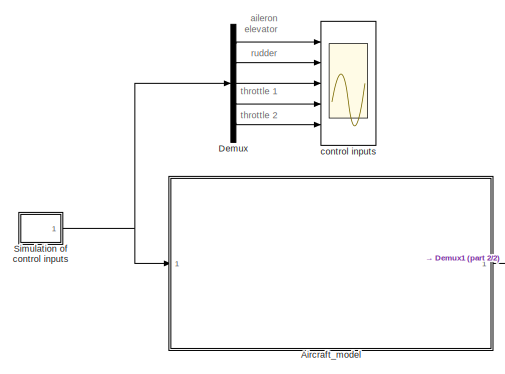
[diagram: root canvas - part 1/2, top left region]
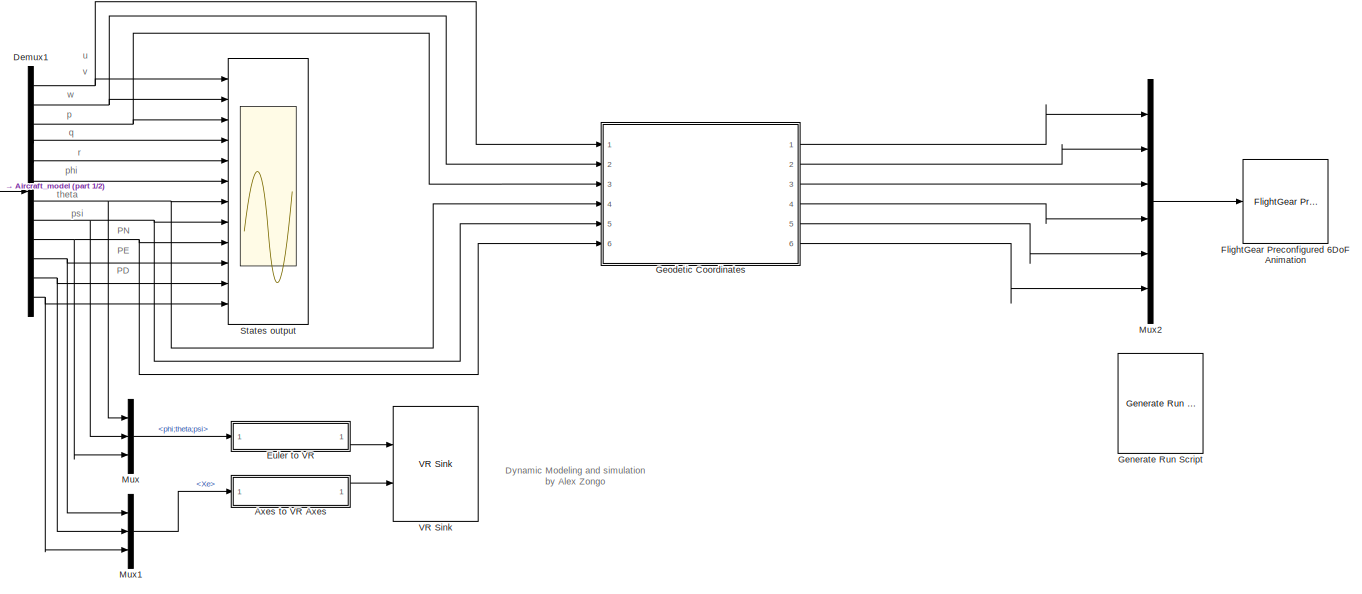
[diagram: root canvas - part 2/2, center side, full height]
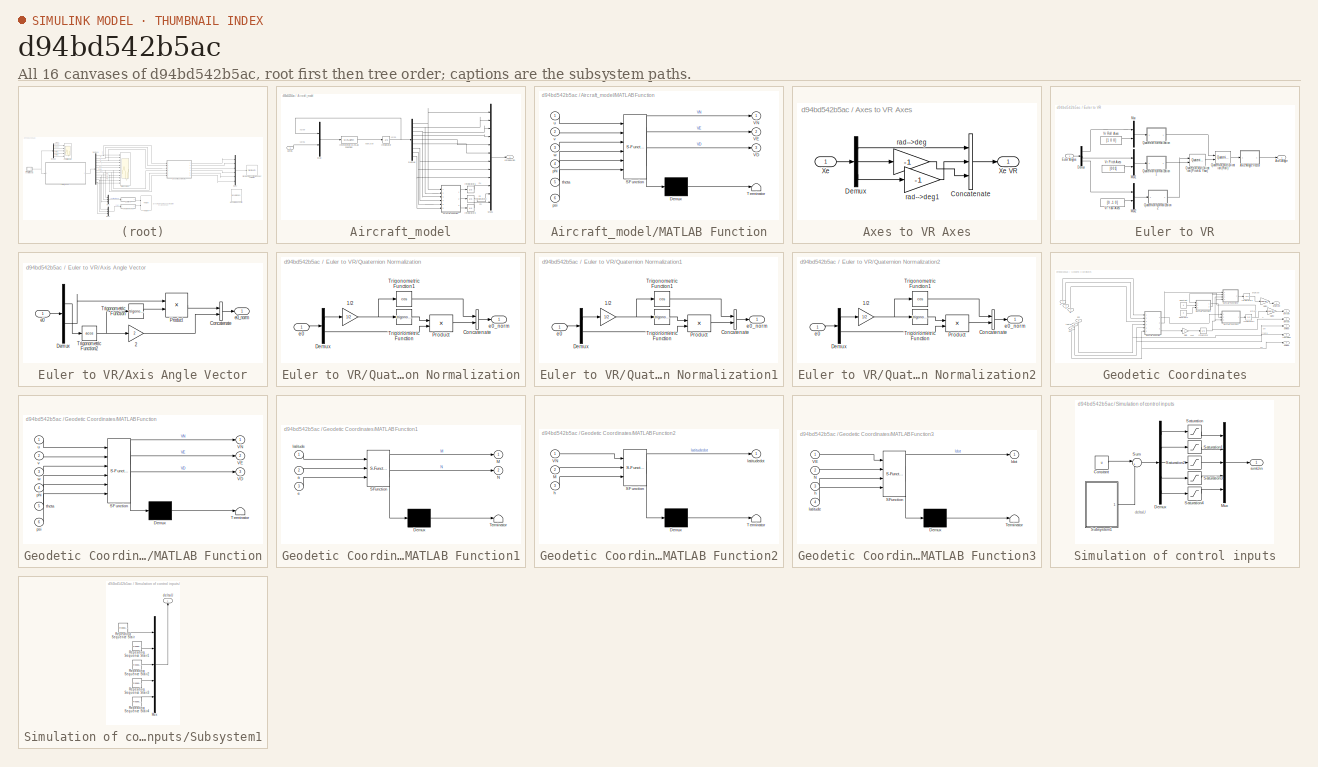
[diagram: thumbnail index - all 16 canvases of the model, root first then tree order]
MODEL slx_d94bd542b5ac
KIND model
CONFIG AbsTol = auto
CONFIG EnableMultiTasking = off
CONFIG FixedStep = auto
CONFIG MaxStep = auto
CONFIG MinStep = auto
CONFIG RelTol = 1e-3
CONFIG SampleTimeConstraint = Unconstrained
CONFIG Solver = VariableStepAuto
CONFIG SolverName = VariableStepAuto
CONFIG StartTime = 0.0
CONFIG StopTime = TF
BLOCK [SubSystem] Aircraft_model
  Ports = [1, 1]
  RequestExecContextInheritance = off
  Variant = off
BLOCK [Demux] Aircraft_model/Demux
  DisplayOption = bar
  Outputs = 9
  Ports = [1, 9]
BLOCK [Integrator] Aircraft_model/Integrator
  InitialCondition = x0
  Ports = [1, 1]
BLOCK [Integrator] Aircraft_model/Integrator1
  InitialCondition = pNED(1)
  Ports = [1, 1]
BLOCK [Integrator] Aircraft_model/Integrator2
  InitialCondition = pNED(2)
  Ports = [1, 1]
BLOCK [Integrator] Aircraft_model/Integrator3
  InitialCondition = pNED(3)
  Ports = [1, 1]
BLOCK [MATLABFcn] Aircraft_model/Interpreted MATLAB Function
  MATLABFcn = Aircraft_model(u(1:9), u (10:14))
  Ports = [1, 1]
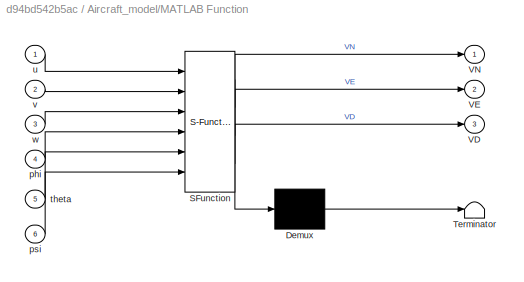
BLOCK [SubSystem] Aircraft_model/MATLAB Function
  ErrorFcn = Stateflow.Translate.translate
  PermitHierarchicalResolution = ExplicitOnly
  Ports = [6, 3]
  RequestExecContextInheritance = off
  SFBlockType = MATLAB Function
  TreatAsAtomicUnit = on
  Variant = off
BLOCK [Demux] Aircraft_model/MATLAB Function/ Demux 
  Outputs = 1
  Ports = [1, 1]
BLOCK [S-Function] Aircraft_model/MATLAB Function/ SFunction 
  EnableBusSupport = on
  FunctionName = sf_sfun
  PortCounts = [6 4]
  Ports = [6, 4]
  SFcnIsStateOwnerBlock = off
  SFunctionDeploymentMode = off
  Tag = Stateflow S-Function simulink_aircraft_simulation 2
BLOCK [Terminator] Aircraft_model/MATLAB Function/ Terminator 
BLOCK [Outport] Aircraft_model/MATLAB Function/VD
  IconDisplay = Port number
  Port = 3
BLOCK [Outport] Aircraft_model/MATLAB Function/VE
  IconDisplay = Port number
  Port = 2
BLOCK [Outport] Aircraft_model/MATLAB Function/VN
  IconDisplay = Port number
BLOCK [Inport] Aircraft_model/MATLAB Function/phi
  IconDisplay = Port number
  Port = 4
BLOCK [Inport] Aircraft_model/MATLAB Function/psi
  IconDisplay = Port number
  Port = 6
BLOCK [Inport] Aircraft_model/MATLAB Function/theta
  IconDisplay = Port number
  Port = 5
BLOCK [Inport] Aircraft_model/MATLAB Function/u
  IconDisplay = Port number
BLOCK [Inport] Aircraft_model/MATLAB Function/v
  IconDisplay = Port number
  Port = 2
BLOCK [Inport] Aircraft_model/MATLAB Function/w
  IconDisplay = Port number
  Port = 3
BLOCK [Mux] Aircraft_model/Mux
  DisplayOption = bar
  Inputs = 2
  Ports = [2, 1]
BLOCK [Mux] Aircraft_model/Mux1
  DisplayOption = bar
  Inputs = 12
  Ports = [12, 1]
BLOCK [Inport] Aircraft_model/u1to5
  IconDisplay = Port number
BLOCK [Outport] Aircraft_model/x1to9pNED
  IconDisplay = Port number
BLOCK [SubSystem] Axes to VR Axes
  Ports = [1, 1]
  RequestExecContextInheritance = off
  Variant = off
BLOCK [Concatenate] Axes to VR Axes/Concatenate
  NumInputs = 3
  Ports = [3, 1]
BLOCK [Demux] Axes to VR Axes/Demux
  Outputs = 3
  Ports = [1, 3]
BLOCK [Inport] Axes to VR Axes/Xe
  IconDisplay = Port number
BLOCK [Outport] Axes to VR Axes/Xe VR
  IconDisplay = Port number
BLOCK [Gain] Axes to VR Axes/rad-->deg
  Gain = -1
BLOCK [Gain] Axes to VR Axes/rad-->deg1
  Gain = -1
BLOCK [Demux] Demux
  DisplayOption = bar
  Outputs = 5
  Ports = [1, 5]
BLOCK [Demux] Demux1
  DisplayOption = bar
  Outputs = 12
  Ports = [1, 12]
BLOCK [SubSystem] Euler to VR
  Ports = [1, 1]
  RequestExecContextInheritance = off
  Variant = off
BLOCK [Outport] Euler to VR/Axis Angle
  IconDisplay = Port number
BLOCK [SubSystem] Euler to VR/Axis Angle Vector
  Ports = [1, 1]
  RequestExecContextInheritance = off
  Variant = off
BLOCK [Gain] Euler to VR/Axis Angle Vector/2
  Gain = 2
BLOCK [Concatenate] Euler to VR/Axis Angle Vector/Concatenate
  Ports = [2, 1]
BLOCK [Demux] Euler to VR/Axis Angle Vector/Demux
  Outputs = [1 3 ]
  Ports = [1, 2]
BLOCK [Product] Euler to VR/Axis Angle Vector/Product
  Inputs = */
  Ports = [2, 1]
  RndMeth = Floor
BLOCK [Trigonometry] Euler to VR/Axis Angle Vector/Trigonometric Function
  Ports = [1, 1]
BLOCK [Trigonometry] Euler to VR/Axis Angle Vector/Trigonometric Function2
  Operator = acos
  Ports = [1, 1]
BLOCK [Inport] Euler to VR/Axis Angle Vector/e0
  IconDisplay = Port number
BLOCK [Outport] Euler to VR/Axis Angle Vector/e0_norm
  IconDisplay = Port number
BLOCK [Demux] Euler to VR/Demux
  Outputs = 3
  Ports = [1, 3]
BLOCK [Inport] Euler to VR/Euler Angles
  IconDisplay = Port number
BLOCK [Mux] Euler to VR/Mux
  DisplayOption = bar
  Inputs = 2
  Ports = [2, 1]
BLOCK [Mux] Euler to VR/Mux1
  DisplayOption = bar
  Inputs = 2
  Ports = [2, 1]
BLOCK [Mux] Euler to VR/Mux2
  DisplayOption = bar
  Inputs = 2
  Ports = [2, 1]
BLOCK [Reference] Euler to VR/Quaternion Multiplication (Pitch & Yaw)  REF=aerolibutil/Quaternion
Multiplication
  Ports = [2, 1]
  SourceBlock = aerolibutil/Quaternion\nMultiplication
  SourceType = Quaternion Multiplication
BLOCK [Reference] Euler to VR/Quaternion Multiplication (Roll)  REF=aerolibutil/Quaternion
Multiplication
  Ports = [2, 1]
  SourceBlock = aerolibutil/Quaternion\nMultiplication
  SourceType = Quaternion Multiplication
BLOCK [SubSystem] Euler to VR/Quaternion Normalization
  Ports = [1, 1]
  RequestExecContextInheritance = off
  Variant = off
BLOCK [Gain] Euler to VR/Quaternion Normalization/1//2
  Gain = 1/2
BLOCK [Concatenate] Euler to VR/Quaternion Normalization/Concatenate
  Ports = [2, 1]
BLOCK [Demux] Euler to VR/Quaternion Normalization/Demux
  Outputs = [1 3]
  Ports = [1, 2]
BLOCK [Product] Euler to VR/Quaternion Normalization/Product
  Ports = [2, 1]
  RndMeth = Floor
BLOCK [Trigonometry] Euler to VR/Quaternion Normalization/Trigonometric Function
  Ports = [1, 1]
BLOCK [Trigonometry] Euler to VR/Quaternion Normalization/Trigonometric Function1
  Operator = cos
  Ports = [1, 1]
BLOCK [Inport] Euler to VR/Quaternion Normalization/e0
  IconDisplay = Port number
BLOCK [Outport] Euler to VR/Quaternion Normalization/e0_norm
  IconDisplay = Port number
BLOCK [SubSystem] Euler to VR/Quaternion Normalization1
  Ports = [1, 1]
  RequestExecContextInheritance = off
  Variant = off
BLOCK [Gain] Euler to VR/Quaternion Normalization1/1//2
  Gain = 1/2
BLOCK [Concatenate] Euler to VR/Quaternion Normalization1/Concatenate
  Ports = [2, 1]
BLOCK [Demux] Euler to VR/Quaternion Normalization1/Demux
  Outputs = [1 3]
  Ports = [1, 2]
BLOCK [Product] Euler to VR/Quaternion Normalization1/Product
  Ports = [2, 1]
  RndMeth = Floor
BLOCK [Trigonometry] Euler to VR/Quaternion Normalization1/Trigonometric Function
  Ports = [1, 1]
BLOCK [Trigonometry] Euler to VR/Quaternion Normalization1/Trigonometric Function1
  Operator = cos
  Ports = [1, 1]
BLOCK [Inport] Euler to VR/Quaternion Normalization1/e0
  IconDisplay = Port number
BLOCK [Outport] Euler to VR/Quaternion Normalization1/e0_norm
  IconDisplay = Port number
BLOCK [SubSystem] Euler to VR/Quaternion Normalization2
  Ports = [1, 1]
  RequestExecContextInheritance = off
  Variant = off
BLOCK [Gain] Euler to VR/Quaternion Normalization2/1//2
  Gain = 1/2
BLOCK [Concatenate] Euler to VR/Quaternion Normalization2/Concatenate
  Ports = [2, 1]
BLOCK [Demux] Euler to VR/Quaternion Normalization2/Demux
  Outputs = [1 3]
  Ports = [1, 2]
BLOCK [Product] Euler to VR/Quaternion Normalization2/Product
  Ports = [2, 1]
  RndMeth = Floor
BLOCK [Trigonometry] Euler to VR/Quaternion Normalization2/Trigonometric Function
  Ports = [1, 1]
BLOCK [Trigonometry] Euler to VR/Quaternion Normalization2/Trigonometric Function1
  Operator = cos
  Ports = [1, 1]
BLOCK [Inport] Euler to VR/Quaternion Normalization2/e0
  IconDisplay = Port number
BLOCK [Outport] Euler to VR/Quaternion Normalization2/e0_norm
  IconDisplay = Port number
BLOCK [Constant] Euler to VR/Vr Pitch Axes
  Value = [0 0 1]
BLOCK [Constant] Euler to VR/Vr Roll Axes
  Value = [1 0 0]
BLOCK [Constant] Euler to VR/Vr Yaw Axes
  Value = [0 -1 0]
BLOCK [Reference] FlightGear Preconfigured 6DoF Animation  REF=aerolibfltsims/FlightGear
Preconfigured
6DoF Animation
  AttributesFormatString = Version Selected: %<xFlightGearVersion>
  Ports = [1]
  SourceBlock = aerolibfltsims/FlightGear\nPreconfigured\n6DoF Animation
  SourceType = FlightGearQuick6DoFAnimation
BLOCK [Reference] Generate Run Script  REF=aerolibfltsims/Generate
Run Script
  Ports = []
  SourceBlock = aerolibfltsims/Generate\nRun Script
  SourceType = Generate FlightGear Run Script
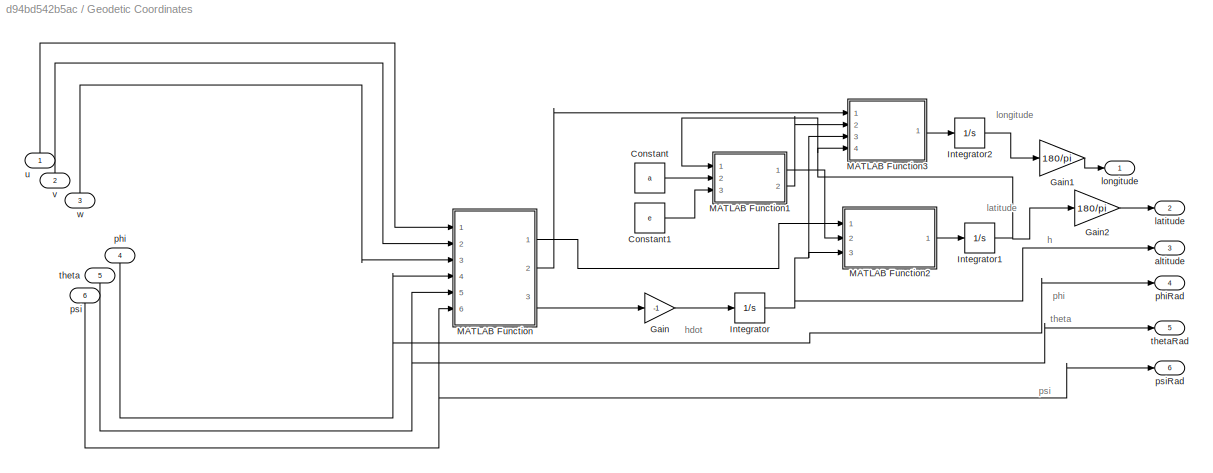
BLOCK [SubSystem] Geodetic Coordinates
  Ports = [6, 6]
  RequestExecContextInheritance = off
  Variant = off
BLOCK [Constant] Geodetic Coordinates/Constant
  Value = a
BLOCK [Constant] Geodetic Coordinates/Constant1
  Value = e
BLOCK [Gain] Geodetic Coordinates/Gain
  Gain = -1
  OutDataTypeStr = Inherit: Inherit via internal rule
  ParamDataTypeStr = Inherit: Inherit via internal rule
  SaturateOnIntegerOverflow = off
BLOCK [Gain] Geodetic Coordinates/Gain1
  Gain = 180/pi
  OutDataTypeStr = Inherit: Inherit via internal rule
  ParamDataTypeStr = Inherit: Inherit via internal rule
  SaturateOnIntegerOverflow = off
BLOCK [Gain] Geodetic Coordinates/Gain2
  Gain = 180/pi
  OutDataTypeStr = Inherit: Inherit via internal rule
  ParamDataTypeStr = Inherit: Inherit via internal rule
  SaturateOnIntegerOverflow = off
BLOCK [Integrator] Geodetic Coordinates/Integrator
  InitialCondition = -pNED(3)
  Ports = [1, 1]
BLOCK [Integrator] Geodetic Coordinates/Integrator1
  InitialCondition = latitude0
  Ports = [1, 1]
BLOCK [Integrator] Geodetic Coordinates/Integrator2
  InitialCondition = longitude0
  Ports = [1, 1]
BLOCK [SubSystem] Geodetic Coordinates/MATLAB Function
  ErrorFcn = Stateflow.Translate.translate
  PermitHierarchicalResolution = ExplicitOnly
  Ports = [6, 3]
  RequestExecContextInheritance = off
  SFBlockType = MATLAB Function
  TreatAsAtomicUnit = on
  Variant = off
BLOCK [Demux] Geodetic Coordinates/MATLAB Function/ Demux 
  Outputs = 1
  Ports = [1, 1]
BLOCK [S-Function] Geodetic Coordinates/MATLAB Function/ SFunction 
  EnableBusSupport = on
  FunctionName = sf_sfun
  PortCounts = [6 4]
  Ports = [6, 4]
  SFcnIsStateOwnerBlock = off
  SFunctionDeploymentMode = off
  Tag = Stateflow S-Function simulink_aircraft_simulation 1
BLOCK [Terminator] Geodetic Coordinates/MATLAB Function/ Terminator 
BLOCK [Outport] Geodetic Coordinates/MATLAB Function/VD
  IconDisplay = Port number
  Port = 3
BLOCK [Outport] Geodetic Coordinates/MATLAB Function/VE
  IconDisplay = Port number
  Port = 2
BLOCK [Outport] Geodetic Coordinates/MATLAB Function/VN
  IconDisplay = Port number
BLOCK [Inport] Geodetic Coordinates/MATLAB Function/phi
  IconDisplay = Port number
  Port = 4
BLOCK [Inport] Geodetic Coordinates/MATLAB Function/psi
  IconDisplay = Port number
  Port = 6
BLOCK [Inport] Geodetic Coordinates/MATLAB Function/theta
  IconDisplay = Port number
  Port = 5
BLOCK [Inport] Geodetic Coordinates/MATLAB Function/u
  IconDisplay = Port number
BLOCK [Inport] Geodetic Coordinates/MATLAB Function/v
  IconDisplay = Port number
  Port = 2
BLOCK [Inport] Geodetic Coordinates/MATLAB Function/w
  IconDisplay = Port number
  Port = 3
BLOCK [SubSystem] Geodetic Coordinates/MATLAB Function1
  ErrorFcn = Stateflow.Translate.translate
  PermitHierarchicalResolution = ExplicitOnly
  Ports = [3, 2]
  RequestExecContextInheritance = off
  SFBlockType = MATLAB Function
  TreatAsAtomicUnit = on
  Variant = off
BLOCK [Demux] Geodetic Coordinates/MATLAB Function1/ Demux 
  Outputs = 1
  Ports = [1, 1]
BLOCK [S-Function] Geodetic Coordinates/MATLAB Function1/ SFunction 
  EnableBusSupport = on
  FunctionName = sf_sfun
  PortCounts = [3 3]
  Ports = [3, 3]
  SFcnIsStateOwnerBlock = off
  SFunctionDeploymentMode = off
  Tag = Stateflow S-Function simulink_aircraft_simulation 3
BLOCK [Terminator] Geodetic Coordinates/MATLAB Function1/ Terminator 
BLOCK [Outport] Geodetic Coordinates/MATLAB Function1/M
  IconDisplay = Port number
BLOCK [Outport] Geodetic Coordinates/MATLAB Function1/N
  IconDisplay = Port number
  Port = 2
BLOCK [Inport] Geodetic Coordinates/MATLAB Function1/a
  IconDisplay = Port number
  Port = 2
BLOCK [Inport] Geodetic Coordinates/MATLAB Function1/e
  IconDisplay = Port number
  Port = 3
BLOCK [Inport] Geodetic Coordinates/MATLAB Function1/latitude
  IconDisplay = Port number
BLOCK [SubSystem] Geodetic Coordinates/MATLAB Function2
  ErrorFcn = Stateflow.Translate.translate
  PermitHierarchicalResolution = ExplicitOnly
  Ports = [3, 1]
  RequestExecContextInheritance = off
  SFBlockType = MATLAB Function
  TreatAsAtomicUnit = on
  Variant = off
BLOCK [Demux] Geodetic Coordinates/MATLAB Function2/ Demux 
  Outputs = 1
  Ports = [1, 1]
BLOCK [S-Function] Geodetic Coordinates/MATLAB Function2/ SFunction 
  EnableBusSupport = on
  FunctionName = sf_sfun
  PortCounts = [3 2]
  Ports = [3, 2]
  SFcnIsStateOwnerBlock = off
  SFunctionDeploymentMode = off
  Tag = Stateflow S-Function simulink_aircraft_simulation 4
BLOCK [Terminator] Geodetic Coordinates/MATLAB Function2/ Terminator 
BLOCK [Inport] Geodetic Coordinates/MATLAB Function2/M
  IconDisplay = Port number
  Port = 2
BLOCK [Inport] Geodetic Coordinates/MATLAB Function2/VN
  IconDisplay = Port number
BLOCK [Inport] Geodetic Coordinates/MATLAB Function2/h
  IconDisplay = Port number
  Port = 3
BLOCK [Outport] Geodetic Coordinates/MATLAB Function2/latitudedot
  IconDisplay = Port number
BLOCK [SubSystem] Geodetic Coordinates/MATLAB Function3
  ErrorFcn = Stateflow.Translate.translate
  PermitHierarchicalResolution = ExplicitOnly
  Ports = [4, 1]
  RequestExecContextInheritance = off
  SFBlockType = MATLAB Function
  TreatAsAtomicUnit = on
  Variant = off
BLOCK [Demux] Geodetic Coordinates/MATLAB Function3/ Demux 
  Outputs = 1
  Ports = [1, 1]
BLOCK [S-Function] Geodetic Coordinates/MATLAB Function3/ SFunction 
  EnableBusSupport = on
  FunctionName = sf_sfun
  PortCounts = [4 2]
  Ports = [4, 2]
  SFcnIsStateOwnerBlock = off
  SFunctionDeploymentMode = off
  Tag = Stateflow S-Function simulink_aircraft_simulation 5
BLOCK [Terminator] Geodetic Coordinates/MATLAB Function3/ Terminator 
BLOCK [Inport] Geodetic Coordinates/MATLAB Function3/N
  IconDisplay = Port number
  Port = 2
BLOCK [Inport] Geodetic Coordinates/MATLAB Function3/VE
  IconDisplay = Port number
BLOCK [Inport] Geodetic Coordinates/MATLAB Function3/h
  IconDisplay = Port number
  Port = 3
BLOCK [Inport] Geodetic Coordinates/MATLAB Function3/latitude
  IconDisplay = Port number
  Port = 4
BLOCK [Outport] Geodetic Coordinates/MATLAB Function3/ldot
  IconDisplay = Port number
BLOCK [Outport] Geodetic Coordinates/altitude
  IconDisplay = Port number
  Port = 3
BLOCK [Outport] Geodetic Coordinates/latitude
  IconDisplay = Port number
  Port = 2
BLOCK [Outport] Geodetic Coordinates/longitude
  IconDisplay = Port number
BLOCK [Inport] Geodetic Coordinates/phi
  IconDisplay = Port number
  Port = 4
BLOCK [Outport] Geodetic Coordinates/phiRad
  IconDisplay = Port number
  Port = 4
BLOCK [Inport] Geodetic Coordinates/psi
  IconDisplay = Port number
  Port = 6
BLOCK [Outport] Geodetic Coordinates/psiRad
  IconDisplay = Port number
  Port = 6
BLOCK [Inport] Geodetic Coordinates/theta
  IconDisplay = Port number
  Port = 5
BLOCK [Outport] Geodetic Coordinates/thetaRad
  IconDisplay = Port number
  Port = 5
BLOCK [Inport] Geodetic Coordinates/u
  IconDisplay = Port number
BLOCK [Inport] Geodetic Coordinates/v
  IconDisplay = Port number
  Port = 2
BLOCK [Inport] Geodetic Coordinates/w
  IconDisplay = Port number
  Port = 3
BLOCK [Mux] Mux
  DisplayOption = bar
  Inputs = 3
  Ports = [3, 1]
BLOCK [Mux] Mux1
  DisplayOption = bar
  Inputs = 3
  Ports = [3, 1]
BLOCK [Mux] Mux2
  DisplayOption = bar
  Inputs = 6
  Ports = [6, 1]
BLOCK [SubSystem] Simulation of control inputs
  Ports = [0, 1]
  RequestExecContextInheritance = off
  Variant = off
BLOCK [Constant] Simulation of control inputs/Constant
  Value = u
BLOCK [Demux] Simulation of control inputs/Demux
  DisplayOption = bar
  Outputs = 5
  Ports = [1, 5]
BLOCK [Mux] Simulation of control inputs/Mux
  DisplayOption = bar
  Inputs = 5
  Ports = [5, 1]
BLOCK [Saturate] Simulation of control inputs/Saturation
  InputPortMap = u0
  LowerLimit = u1min
  Ports = [1, 1]
  UpperLimit = u1max
BLOCK [Saturate] Simulation of control inputs/Saturation1
  InputPortMap = u0
  LowerLimit = u2min
  Ports = [1, 1]
  UpperLimit = u2max
BLOCK [Saturate] Simulation of control inputs/Saturation2
  InputPortMap = u0
  LowerLimit = u3min
  Ports = [1, 1]
  UpperLimit = u3max
BLOCK [Saturate] Simulation of control inputs/Saturation3
  InputPortMap = u0
  LowerLimit = u4min
  Ports = [1, 1]
  UpperLimit = u4max
BLOCK [Saturate] Simulation of control inputs/Saturation4
  InputPortMap = u0
  LowerLimit = u5min
  Ports = [1, 1]
  UpperLimit = u5max
BLOCK [SubSystem] Simulation of control inputs/Subsystem1
  Ports = [0, 1]
  RequestExecContextInheritance = off
  Variant = off
BLOCK [Mux] Simulation of control inputs/Subsystem1/Mux
  DisplayOption = bar
  Inputs = 5
  Ports = [5, 1]
BLOCK [Reference] Simulation of control inputs/Subsystem1/Repeating Sequence Stair  REF=simulink/Sources/Repeating
Sequence
Stair
  Ports = [0, 1]
  SourceBlock = simulink/Sources/Repeating\nSequence\nStair
  SourceType = Repeating Sequence Stair
BLOCK [Reference] Simulation of control inputs/Subsystem1/Repeating Sequence Stair1  REF=simulink/Sources/Repeating
Sequence
Stair
  Ports = [0, 1]
  SourceBlock = simulink/Sources/Repeating\nSequence\nStair
  SourceType = Repeating Sequence Stair
BLOCK [Reference] Simulation of control inputs/Subsystem1/Repeating Sequence Stair2  REF=simulink/Sources/Repeating
Sequence
Stair
  Ports = [0, 1]
  SourceBlock = simulink/Sources/Repeating\nSequence\nStair
  SourceType = Repeating Sequence Stair
BLOCK [Reference] Simulation of control inputs/Subsystem1/Repeating Sequence Stair3  REF=simulink/Sources/Repeating
Sequence
Stair
  Ports = [0, 1]
  SourceBlock = simulink/Sources/Repeating\nSequence\nStair
  SourceType = Repeating Sequence Stair
BLOCK [Reference] Simulation of control inputs/Subsystem1/Repeating Sequence Stair4  REF=simulink/Sources/Repeating
Sequence
Stair
  Ports = [0, 1]
  SourceBlock = simulink/Sources/Repeating\nSequence\nStair
  SourceType = Repeating Sequence Stair
BLOCK [Outport] Simulation of control inputs/Subsystem1/deltaU
  IconDisplay = Port number
BLOCK [Sum] Simulation of control inputs/Sum
  IconShape = round
  InputSameDT = off
  Inputs = |++
  OutDataTypeStr = Inherit: Inherit via internal rule
  Ports = [2, 1]
  SaturateOnIntegerOverflow = off
BLOCK [Outport] Simulation of control inputs/simUin
  IconDisplay = Port number
BLOCK [Scope] States output
  NumInputPorts = 12
  Ports = [12]
  ScopeSpecificationString = Simulink.scopes.TimeScopeBlockCfg('CurrentConfiguration', extmgr.ConfigurationSet(extmgr.Configuration('Core','General UI',true),extmgr.Configuration('Core','Source UI',true),extmgr.Configuration('Sources','WiredSimulink',true,'DataLoggingVariableName','ScopeData1'),extmgr.Configuration('Visuals','Time Domain',true,'SerializedDisplays',{struct('MinYLimReal','80.28417','MaxYLimReal','101.29736','YL...<+9180ch>
BLOCK [Reference] VR Sink  REF=vrlib/VR Sink
  InstantiateOnLoad = on
  Ports = [2]
  SourceBlock = vrlib/VR Sink
  SourceType = Virtual Reality Sink
BLOCK [Scope] control inputs
  NumInputPorts = 5
  Ports = [5]
  ScopeSpecificationString = Simulink.scopes.TimeScopeBlockCfg('CurrentConfiguration', extmgr.ConfigurationSet(extmgr.Configuration('Core','General UI',true),extmgr.Configuration('Core','Source UI',true),extmgr.Configuration('Sources','WiredSimulink',true),extmgr.Configuration('Visuals','Time Domain',true,'SerializedDisplays',{struct('MinYLimReal','-0.21817','MaxYLimReal','0.21817','YLabelReal','','MinYLimMag','0.00000','MaxY...<+6144ch>
ANNOTATION (root): Dynamic Modeling and simulation by Alex Zongo
ANNOTATION (root): PD
ANNOTATION (root): PE
ANNOTATION (root): PN
ANNOTATION (root): aileron
ANNOTATION (root): elevator
ANNOTATION (root): p
ANNOTATION (root): phi
ANNOTATION (root): psi
ANNOTATION (root): q
ANNOTATION (root): r
ANNOTATION (root): rudder
ANNOTATION (root): theta
ANNOTATION (root): throttle 1
ANNOTATION (root): throttle 2
ANNOTATION (root): u
ANNOTATION (root): v
ANNOTATION (root): w
ANNOTATION Aircraft_model: PD
ANNOTATION Aircraft_model: PE
ANNOTATION Aircraft_model: PN
ANNOTATION Aircraft_model: u1to5
ANNOTATION Aircraft_model: x1to9
ANNOTATION Aircraft_model: xdot1to9
ANNOTATION Geodetic Coordinates: h
ANNOTATION Geodetic Coordinates: hdot
ANNOTATION Geodetic Coordinates: latitude
ANNOTATION Geodetic Coordinates: longitude
ANNOTATION Geodetic Coordinates: phi
ANNOTATION Geodetic Coordinates: psi
ANNOTATION Geodetic Coordinates: theta
ANNOTATION Simulation of control inputs: deltaU
NET Aircraft_model/Demux:1 -> Aircraft_model/MATLAB Function:1, Aircraft_model/Mux1:1
NET Aircraft_model/Demux:2 -> Aircraft_model/MATLAB Function:2, Aircraft_model/Mux1:2
NET Aircraft_model/Demux:3 -> Aircraft_model/MATLAB Function:3, Aircraft_model/Mux1:3
LINE Aircraft_model/Demux:4 -> Aircraft_model/Mux1:4
LINE Aircraft_model/Demux:5 -> Aircraft_model/Mux1:5
LINE Aircraft_model/Demux:6 -> Aircraft_model/Mux1:6
NET Aircraft_model/Demux:7 -> Aircraft_model/MATLAB Function:4, Aircraft_model/Mux1:7
NET Aircraft_model/Demux:8 -> Aircraft_model/MATLAB Function:5, Aircraft_model/Mux1:8
NET Aircraft_model/Demux:9 -> Aircraft_model/MATLAB Function:6, Aircraft_model/Mux1:9
LINE Aircraft_model/Integrator1:1 -> Aircraft_model/Mux1:10
LINE Aircraft_model/Integrator2:1 -> Aircraft_model/Mux1:11
LINE Aircraft_model/Integrator3:1 -> Aircraft_model/Mux1:12
NET Aircraft_model/Integrator:1 -> Aircraft_model/Demux:1, Aircraft_model/Mux:1
LINE Aircraft_model/Interpreted MATLAB Function:1 -> Aircraft_model/Integrator:1
LINE Aircraft_model/MATLAB Function:1 -> Aircraft_model/Integrator1:1
LINE Aircraft_model/MATLAB Function:2 -> Aircraft_model/Integrator2:1
LINE Aircraft_model/MATLAB Function:3 -> Aircraft_model/Integrator3:1
LINE Aircraft_model/Mux1:1 -> Aircraft_model/x1to9pNED:1
LINE Aircraft_model/Mux:1 -> Aircraft_model/Interpreted MATLAB Function:1
LINE Aircraft_model/u1to5:1 -> Aircraft_model/Mux:2
LINE Aircraft_model:1 -> Demux1:1
LINE Axes to VR Axes/Concatenate:1 -> Axes to VR Axes/Xe VR:1
LINE Axes to VR Axes/Demux:1 -> Axes to VR Axes/Concatenate:1
LINE Axes to VR Axes/Demux:2 -> Axes to VR Axes/rad-->deg:1
LINE Axes to VR Axes/Demux:3 -> Axes to VR Axes/rad-->deg1:1
LINE Axes to VR Axes/Xe:1 -> Axes to VR Axes/Demux:1
LINE Axes to VR Axes/rad-->deg1:1 -> Axes to VR Axes/Concatenate:2
LINE Axes to VR Axes/rad-->deg:1 -> Axes to VR Axes/Concatenate:3
LINE Axes to VR Axes:1 -> VR Sink:2
NET Demux1:1 -> Geodetic Coordinates:1, States output:1
NET Demux1:10 -> Mux1:1, States output:10
NET Demux1:11 -> Mux1:2, States output:11
NET Demux1:12 -> Mux1:3, States output:12
NET Demux1:2 -> Geodetic Coordinates:2, States output:2
NET Demux1:3 -> Geodetic Coordinates:3, States output:3
LINE Demux1:4 -> States output:4
LINE Demux1:5 -> States output:5
LINE Demux1:6 -> States output:6
NET Demux1:7 -> Geodetic Coordinates:4, Mux:1, States output:7
NET Demux1:8 -> Geodetic Coordinates:5, Mux:2, States output:8
NET Demux1:9 -> Geodetic Coordinates:6, Mux:3, States output:9
LINE Demux:1 -> control inputs:1
LINE Demux:2 -> control inputs:2
LINE Demux:3 -> control inputs:3
LINE Demux:4 -> control inputs:4
LINE Demux:5 -> control inputs:5
LINE Euler to VR/Axis Angle Vector/2:1 -> Euler to VR/Axis Angle Vector/Concatenate:2
LINE Euler to VR/Axis Angle Vector/Concatenate:1 -> Euler to VR/Axis Angle Vector/e0_norm:1
LINE Euler to VR/Axis Angle Vector/Demux:1 -> Euler to VR/Axis Angle Vector/Trigonometric Function2:1
LINE Euler to VR/Axis Angle Vector/Demux:2 -> Euler to VR/Axis Angle Vector/Product:1
LINE Euler to VR/Axis Angle Vector/Product:1 -> Euler to VR/Axis Angle Vector/Concatenate:1
NET Euler to VR/Axis Angle Vector/Trigonometric Function2:1 -> Euler to VR/Axis Angle Vector/2:1, Euler to VR/Axis Angle Vector/Trigonometric Function:1
LINE Euler to VR/Axis Angle Vector/Trigonometric Function:1 -> Euler to VR/Axis Angle Vector/Product:2
LINE Euler to VR/Axis Angle Vector/e0:1 -> Euler to VR/Axis Angle Vector/Demux:1
LINE Euler to VR/Axis Angle Vector:1 -> Euler to VR/Axis Angle:1
LINE Euler to VR/Demux:1 -> Euler to VR/Mux:1
LINE Euler to VR/Demux:2 -> Euler to VR/Mux1:1
LINE Euler to VR/Demux:3 -> Euler to VR/Mux2:1
LINE Euler to VR/Euler Angles:1 -> Euler to VR/Demux:1
LINE Euler to VR/Mux1:1 -> Euler to VR/Quaternion Normalization1:1
LINE Euler to VR/Mux2:1 -> Euler to VR/Quaternion Normalization2:1
LINE Euler to VR/Mux:1 -> Euler to VR/Quaternion Normalization:1
LINE Euler to VR/Quaternion Multiplication (Pitch & Yaw):1 -> Euler to VR/Quaternion Multiplication (Roll):2
LINE Euler to VR/Quaternion Multiplication (Roll):1 -> Euler to VR/Axis Angle Vector:1
NET Euler to VR/Quaternion Normalization/1//2:1 -> Euler to VR/Quaternion Normalization/Trigonometric Function1:1, Euler to VR/Quaternion Normalization/Trigonometric Function:1
LINE Euler to VR/Quaternion Normalization/Concatenate:1 -> Euler to VR/Quaternion Normalization/e0_norm:1
LINE Euler to VR/Quaternion Normalization/Demux:1 -> Euler to VR/Quaternion Normalization/1//2:1
LINE Euler to VR/Quaternion Normalization/Demux:2 -> Euler to VR/Quaternion Normalization/Product:2
LINE Euler to VR/Quaternion Normalization/Product:1 -> Euler to VR/Quaternion Normalization/Concatenate:2
LINE Euler to VR/Quaternion Normalization/Trigonometric Function1:1 -> Euler to VR/Quaternion Normalization/Concatenate:1
LINE Euler to VR/Quaternion Normalization/Trigonometric Function:1 -> Euler to VR/Quaternion Normalization/Product:1
LINE Euler to VR/Quaternion Normalization/e0:1 -> Euler to VR/Quaternion Normalization/Demux:1
NET Euler to VR/Quaternion Normalization1/1//2:1 -> Euler to VR/Quaternion Normalization1/Trigonometric Function1:1, Euler to VR/Quaternion Normalization1/Trigonometric Function:1
LINE Euler to VR/Quaternion Normalization1/Concatenate:1 -> Euler to VR/Quaternion Normalization1/e0_norm:1
LINE Euler to VR/Quaternion Normalization1/Demux:1 -> Euler to VR/Quaternion Normalization1/1//2:1
LINE Euler to VR/Quaternion Normalization1/Demux:2 -> Euler to VR/Quaternion Normalization1/Product:2
LINE Euler to VR/Quaternion Normalization1/Product:1 -> Euler to VR/Quaternion Normalization1/Concatenate:2
LINE Euler to VR/Quaternion Normalization1/Trigonometric Function1:1 -> Euler to VR/Quaternion Normalization1/Concatenate:1
LINE Euler to VR/Quaternion Normalization1/Trigonometric Function:1 -> Euler to VR/Quaternion Normalization1/Product:1
LINE Euler to VR/Quaternion Normalization1/e0:1 -> Euler to VR/Quaternion Normalization1/Demux:1
LINE Euler to VR/Quaternion Normalization1:1 -> Euler to VR/Quaternion Multiplication (Pitch & Yaw):2
NET Euler to VR/Quaternion Normalization2/1//2:1 -> Euler to VR/Quaternion Normalization2/Trigonometric Function1:1, Euler to VR/Quaternion Normalization2/Trigonometric Function:1
LINE Euler to VR/Quaternion Normalization2/Concatenate:1 -> Euler to VR/Quaternion Normalization2/e0_norm:1
LINE Euler to VR/Quaternion Normalization2/Demux:1 -> Euler to VR/Quaternion Normalization2/1//2:1
LINE Euler to VR/Quaternion Normalization2/Demux:2 -> Euler to VR/Quaternion Normalization2/Product:2
LINE Euler to VR/Quaternion Normalization2/Product:1 -> Euler to VR/Quaternion Normalization2/Concatenate:2
LINE Euler to VR/Quaternion Normalization2/Trigonometric Function1:1 -> Euler to VR/Quaternion Normalization2/Concatenate:1
LINE Euler to VR/Quaternion Normalization2/Trigonometric Function:1 -> Euler to VR/Quaternion Normalization2/Product:1
LINE Euler to VR/Quaternion Normalization2/e0:1 -> Euler to VR/Quaternion Normalization2/Demux:1
LINE Euler to VR/Quaternion Normalization2:1 -> Euler to VR/Quaternion Multiplication (Pitch & Yaw):1
LINE Euler to VR/Quaternion Normalization:1 -> Euler to VR/Quaternion Multiplication (Roll):1
LINE Euler to VR/Vr Pitch Axes:1 -> Euler to VR/Mux1:2
LINE Euler to VR/Vr Roll Axes:1 -> Euler to VR/Mux:2
LINE Euler to VR/Vr Yaw Axes:1 -> Euler to VR/Mux2:2
LINE Euler to VR:1 -> VR Sink:1
LINE Geodetic Coordinates/Constant1:1 -> Geodetic Coordinates/MATLAB Function1:3
LINE Geodetic Coordinates/Constant:1 -> Geodetic Coordinates/MATLAB Function1:2
LINE Geodetic Coordinates/Gain1:1 -> Geodetic Coordinates/longitude:1
LINE Geodetic Coordinates/Gain2:1 -> Geodetic Coordinates/latitude:1
LINE Geodetic Coordinates/Gain:1 -> Geodetic Coordinates/Integrator:1
NET Geodetic Coordinates/Integrator1:1 -> Geodetic Coordinates/Gain2:1, Geodetic Coordinates/MATLAB Function1:1, Geodetic Coordinates/MATLAB Function3:4
LINE Geodetic Coordinates/Integrator2:1 -> Geodetic Coordinates/Gain1:1
NET Geodetic Coordinates/Integrator:1 -> Geodetic Coordinates/MATLAB Function2:3, Geodetic Coordinates/MATLAB Function3:3, Geodetic Coordinates/altitude:1
LINE Geodetic Coordinates/MATLAB Function1:1 -> Geodetic Coordinates/MATLAB Function2:2
LINE Geodetic Coordinates/MATLAB Function1:2 -> Geodetic Coordinates/MATLAB Function3:2
LINE Geodetic Coordinates/MATLAB Function2:1 -> Geodetic Coordinates/Integrator1:1
LINE Geodetic Coordinates/MATLAB Function3:1 -> Geodetic Coordinates/Integrator2:1
LINE Geodetic Coordinates/MATLAB Function:1 -> Geodetic Coordinates/MATLAB Function2:1
LINE Geodetic Coordinates/MATLAB Function:2 -> Geodetic Coordinates/MATLAB Function3:1
LINE Geodetic Coordinates/MATLAB Function:3 -> Geodetic Coordinates/Gain:1
NET Geodetic Coordinates/phi:1 -> Geodetic Coordinates/MATLAB Function:4, Geodetic Coordinates/phiRad:1
NET Geodetic Coordinates/psi:1 -> Geodetic Coordinates/MATLAB Function:6, Geodetic Coordinates/psiRad:1
NET Geodetic Coordinates/theta:1 -> Geodetic Coordinates/MATLAB Function:5, Geodetic Coordinates/thetaRad:1
LINE Geodetic Coordinates/u:1 -> Geodetic Coordinates/MATLAB Function:1
LINE Geodetic Coordinates/v:1 -> Geodetic Coordinates/MATLAB Function:2
LINE Geodetic Coordinates/w:1 -> Geodetic Coordinates/MATLAB Function:3
LINE Geodetic Coordinates:1 -> Mux2:1
LINE Geodetic Coordinates:2 -> Mux2:2
LINE Geodetic Coordinates:3 -> Mux2:3
LINE Geodetic Coordinates:4 -> Mux2:4
LINE Geodetic Coordinates:5 -> Mux2:5
LINE Geodetic Coordinates:6 -> Mux2:6
LINE Mux1:1 -> Axes to VR Axes:1
LINE Mux2:1 -> FlightGear Preconfigured 6DoF Animation:1
LINE Mux:1 -> Euler to VR:1
LINE Simulation of control inputs/Constant:1 -> Simulation of control inputs/Sum:1
LINE Simulation of control inputs/Demux:1 -> Simulation of control inputs/Saturation:1
LINE Simulation of control inputs/Demux:2 -> Simulation of control inputs/Saturation1:1
LINE Simulation of control inputs/Demux:3 -> Simulation of control inputs/Saturation2:1
LINE Simulation of control inputs/Demux:4 -> Simulation of control inputs/Saturation3:1
LINE Simulation of control inputs/Demux:5 -> Simulation of control inputs/Saturation4:1
LINE Simulation of control inputs/Mux:1 -> Simulation of control inputs/simUin:1
LINE Simulation of control inputs/Saturation1:1 -> Simulation of control inputs/Mux:2
LINE Simulation of control inputs/Saturation2:1 -> Simulation of control inputs/Mux:3
LINE Simulation of control inputs/Saturation3:1 -> Simulation of control inputs/Mux:4
LINE Simulation of control inputs/Saturation4:1 -> Simulation of control inputs/Mux:5
LINE Simulation of control inputs/Saturation:1 -> Simulation of control inputs/Mux:1
LINE Simulation of control inputs/Subsystem1/Mux:1 -> Simulation of control inputs/Subsystem1/deltaU:1
LINE Simulation of control inputs/Subsystem1/Repeating Sequence Stair1:1 -> Simulation of control inputs/Subsystem1/Mux:2
LINE Simulation of control inputs/Subsystem1/Repeating Sequence Stair2:1 -> Simulation of control inputs/Subsystem1/Mux:3
LINE Simulation of control inputs/Subsystem1/Repeating Sequence Stair3:1 -> Simulation of control inputs/Subsystem1/Mux:4
LINE Simulation of control inputs/Subsystem1/Repeating Sequence Stair4:1 -> Simulation of control inputs/Subsystem1/Mux:5
LINE Simulation of control inputs/Subsystem1/Repeating Sequence Stair:1 -> Simulation of control inputs/Subsystem1/Mux:1
LINE Simulation of control inputs/Subsystem1:1 -> Simulation of control inputs/Sum:2
LINE Simulation of control inputs/Sum:1 -> Simulation of control inputs/Demux:1
NET Simulation of control inputs:1 -> Aircraft_model:1, Demux:1
note: NET lines group one-source signal fan-out (src -> all destinations, sorted); 1:1 wires keep LINE
CHART Geodetic Coordinates/MATLAB Function states=1 transitions=1
  STATE_LABEL 'eML_blk_kernel()'
  STATE_LABEL "SCRIPT:\nfunction [VN, VE, VD] = fcn(u, v, w, phi, theta, psi)\n\nc1v=[cos(psi) sin(psi) 0; -sin(psi) cos(psi) 0; 0 0 1];\nc21=[cos(theta) 0 -sin(theta); 0 1 0; sin(theta) 0 cos(theta)];\ncb2=[1 0 0; 0 cos(phi) sin(phi); 0 -sin(phi) cos(phi)];\n\ncbv=cb2*c21*c1v;\nV_b=[u; v; w];\nV_v = cbv'*V_b;\nVN=V_v(1);\nVE = V_v(2);\nVD = V_v(3);\n\n"
CHART Aircraft_model/MATLAB Function states=1 transitions=1
  STATE_LABEL 'eML_blk_kernel()'
  STATE_LABEL "SCRIPT:\nfunction [VN, VE, VD] = fcn(u, v, w, phi, theta, psi)\n\nc1v=[cos(psi) sin(psi) 0; -sin(psi) cos(psi) 0; 0 0 1];\nc21=[cos(theta) 0 -sin(theta); 0 1 0; sin(theta) 0 cos(theta)];\ncb2=[1 0 0; 0 cos(phi) sin(phi); 0 -sin(phi) cos(phi)];\n\ncbv=cb2*c21*c1v;\nV_b=[u; v; w];\nV_v = cbv'*V_b;\nVN=V_v(1);\nVE = V_v(2);\nVD = V_v(3);\n\n"
CHART Geodetic Coordinates/MATLAB Function1 states=1 transitions=1
  STATE_LABEL 'eML_blk_kernel()'
  STATE_LABEL 'SCRIPT:\nfunction [M, N] = fcn(latitude, a, e)\n\nM = (a*(1-e^2))/((1-(e*sin(latitude))^2)^1.5);\nN = a/((1-(e*sin(latitude))^2)^0.5);\n'
CHART Geodetic Coordinates/MATLAB Function2 states=1 transitions=1
  STATE_LABEL 'eML_blk_kernel()'
  STATE_LABEL 'SCRIPT:\nfunction latitudedot  = fcn(VN, M, h)\n\nlatitudedot = VN/(M+h);\n'
CHART Geodetic Coordinates/MATLAB Function3 states=1 transitions=1
  STATE_LABEL 'eML_blk_kernel()'
  STATE_LABEL 'SCRIPT:\nfunction ldot = fcn(VE, N, h, latitude)\n\nldot = VE/((N+h)*cos(latitude));\n'
